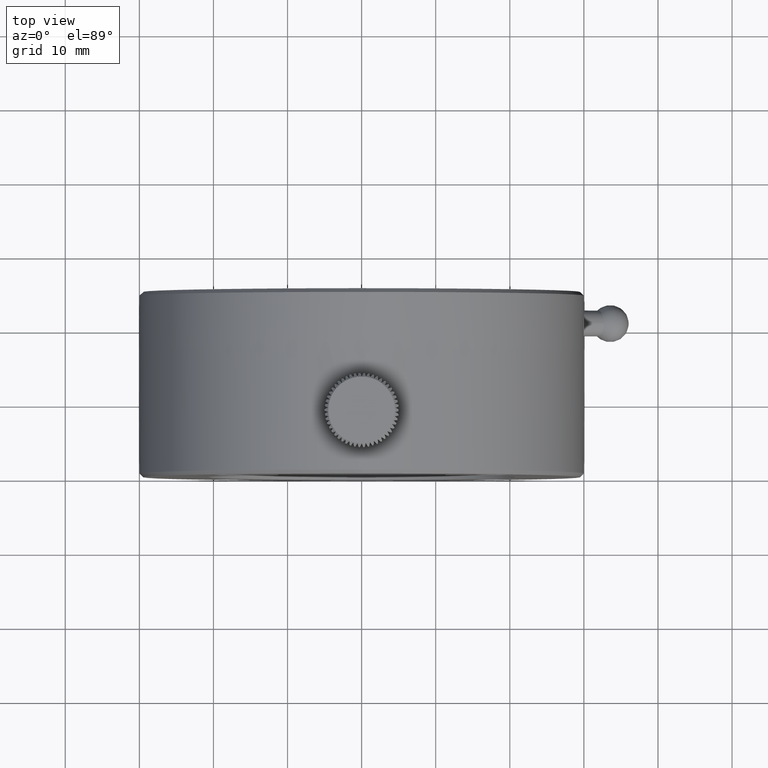
[diagram: clean part render]
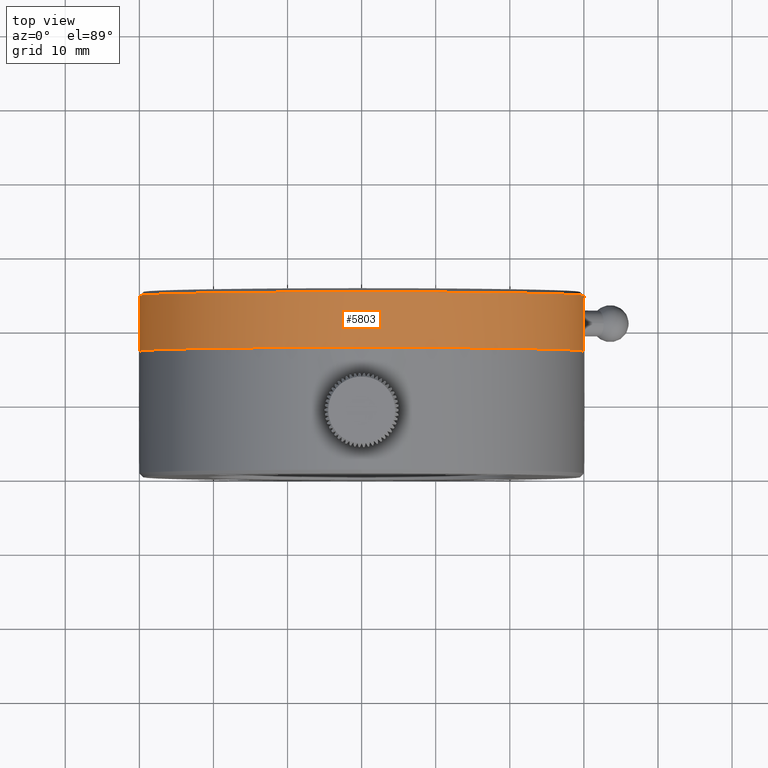
[diagram: same view with one face highlighted and labeled with its STEP entity id]
A machine part, top view. The second image highlights one B-rep face of the part: STEP entity #5803.
In plain terms, the highlighted cylindrical surface (bore or boss wall) has radius 30 mm, axis along (0, -1, 0).
Its self-contained STEP definition (entity closure, byte-faithful):
#49 = CARTESIAN_POINT ( 'NONE',  ( 27.68142442731680930, 21.32723536579543833, -11.56471716143525796 ) ) ;
#399 = EDGE_CURVE ( 'NONE', #4442, #4442, #5060, .T. ) ;
#623 = CARTESIAN_POINT ( 'NONE',  ( 26.63734876591264111, 21.16516572308115585, -13.80042212119369438 ) ) ;
#760 = CARTESIAN_POINT ( 'NONE',  ( 0.000000000000000000, 17.00000000000000000, 0.000000000000000000 ) ) ;
#774 = CARTESIAN_POINT ( 'NONE',  ( 26.70987944275684356, 21.63040557710719369, -13.65965931118524068 ) ) ;
#925 = VERTEX_POINT ( 'NONE', #1552 ) ;
#1015 = EDGE_LOOP ( 'NONE', ( #1775 ) ) ;
#1065 = ORIENTED_EDGE ( 'NONE', *, *, #399, .F. ) ;
#1344 = CARTESIAN_POINT ( 'NONE',  ( 27.69389442026435333, 20.83483435595317701, -11.53465265360213365 ) ) ;
#1357 = FACE_OUTER_BOUND ( 'NONE', #4241, .T. ) ;
#1378 = AXIS2_PLACEMENT_3D ( 'NONE', #2847, #6650, #7277 ) ;
#1395 = CARTESIAN_POINT ( 'NONE',  ( 27.44931779371646030, 19.90728621856177583, -12.10610849439462910 ) ) ;
#1445 = CARTESIAN_POINT ( 'NONE',  ( 26.85570001505799453, 20.00080466315160876, -13.37103894083736577 ) ) ;
#1491 = CARTESIAN_POINT ( 'NONE',  ( 27.69389442026434978, 21.16516564404682654, -11.53465265360213188 ) ) ;
#1552 = CARTESIAN_POINT ( 'NONE',  ( 0.000000000000000000, 17.00000000000000000, -30.00000000000000000 ) ) ;
#1775 = ORIENTED_EDGE ( 'NONE', *, *, #6146, .T. ) ;
#1824 = AXIS2_PLACEMENT_3D ( 'NONE', #3706, #7223, #6553 ) ;
#1880 = AXIS2_PLACEMENT_3D ( 'NONE', #760, #8060, #2766 ) ;
#2058 = CARTESIAN_POINT ( 'NONE',  ( 27.44948518352944689, 22.09232623478785129, -12.10571703049020620 ) ) ;
#2105 = CARTESIAN_POINT ( 'NONE',  ( 27.12069316179893974, 22.25011076576325664, -12.82554424066681520 ) ) ;
#2155 = CARTESIAN_POINT ( 'NONE',  ( 26.63734876591260203, 21.00000000000063594, -13.80042212119376366 ) ) ;
#2213 = CARTESIAN_POINT ( 'NONE',  ( 26.75171681991493955, 21.76794560982602533, -13.57789706570922306 ) ) ;
#2766 = DIRECTION ( 'NONE',  ( 0.000000000000000000, 0.000000000000000000, -1.000000000000000000 ) ) ;
#2775 = CARTESIAN_POINT ( 'NONE',  ( 27.05018420901201992, 22.21779081723431304, -12.97345152446759542 ) ) ;
#2834 = CARTESIAN_POINT ( 'NONE',  ( 27.32576376134784724, 19.78220921288773226, -12.38246926414523763 ) ) ;
#2847 = CARTESIAN_POINT ( 'NONE',  ( 0.000000000000000000, 24.50000000000000000, 0.000000000000000000 ) ) ;
#2881 = CARTESIAN_POINT ( 'NONE',  ( 27.68139871581099243, 20.67246482193225532, -11.56477917960581969 ) ) ;
#2969 = EDGE_LOOP ( 'NONE', ( #5251 ) ) ;
#3422 = VERTEX_POINT ( 'NONE', #8673 ) ;
#3606 = CARTESIAN_POINT ( 'NONE',  ( 26.75208405465637540, 20.23139648429414095, -13.57716113142863001 ) ) ;
#3648 = CARTESIAN_POINT ( 'NONE',  ( 27.59661686605143061, 21.76860394756834793, -11.76605469990645858 ) ) ;
#3706 = CARTESIAN_POINT ( 'NONE',  ( 0.000000000000000000, 5.000000000000009770, 0.000000000000000000 ) ) ;
#4241 = EDGE_LOOP ( 'NONE', ( #1065 ) ) ;
#4267 = CARTESIAN_POINT ( 'NONE',  ( 26.91789863587025167, 22.09271393086867974, -13.24574056926256560 ) ) ;
#4417 = CARTESIAN_POINT ( 'NONE',  ( 26.85662810958371693, 22.00110055191671776, -13.36918726488015530 ) ) ;
#4442 = VERTEX_POINT ( 'NONE', #6706 ) ;
#4955 = CARTESIAN_POINT ( 'NONE',  ( 27.63268580080644199, 20.36959497726122947, -11.68069466130576473 ) ) ;
#5041 = CARTESIAN_POINT ( 'NONE',  ( 26.65236385750483805, 20.67276540362959381, -13.77154465374024284 ) ) ;
#5060 = CIRCLE ( 'NONE', #1378, 30.00000000000000000 ) ;
#5093 = CARTESIAN_POINT ( 'NONE',  ( 26.63734876591255940, 20.83483427692011247, -13.80042212119383116 ) ) ;
#5109 = FACE_OUTER_BOUND ( 'NONE', #2969, .T. ) ;
#5148 = CARTESIAN_POINT ( 'NONE',  ( 26.65239503673935317, 21.32753592804000675, -13.77148471116477779 ) ) ;
#5251 = ORIENTED_EDGE ( 'NONE', *, *, #7740, .T. ) ;
#5720 = CARTESIAN_POINT ( 'NONE',  ( 27.59694484515138768, 20.23205483218132272, -11.76529968840710083 ) ) ;
#5725 = CIRCLE ( 'NONE', #1880, 30.00000000000000000 ) ;
#5785 = FACE_BOUND ( 'NONE', #1015, .T. ) ;
#5803 = ADVANCED_FACE ( 'NONE', ( #5109, #1357, #5785 ), #8036, .T. ) ;
#5818 = CARTESIAN_POINT ( 'NONE',  ( 27.11996507677523383, 19.75011134577054861, -12.82708372568305144 ) ) ;
#5869 = CARTESIAN_POINT ( 'NONE',  ( 26.70976878045558323, 20.37004075367307721, -13.65987529362516995 ) ) ;
#6146 = EDGE_CURVE ( 'NONE', #3422, #3422, #8416, .T. ) ;
#6437 = CARTESIAN_POINT ( 'NONE',  ( 27.25849370299465235, 22.24988865428257157, -12.53000812807204234 ) ) ;
#6553 = DIRECTION ( 'NONE',  ( 0.000000000000000000, 0.000000000000000000, -1.000000000000000000 ) ) ;
#6650 = DIRECTION ( 'NONE',  ( -0.000000000000000000, 1.000000000000000000, -0.000000000000000000 ) ) ;
#6706 = CARTESIAN_POINT ( 'NONE',  ( 0.000000000000000000, 24.50000000000000000, -30.00000000000000000 ) ) ;
#7162 = CARTESIAN_POINT ( 'NONE',  ( 27.50532117201403537, 21.99919556703051882, -11.97792189309905275 ) ) ;
#7208 = CARTESIAN_POINT ( 'NONE',  ( 26.63734876591260203, 21.00000000000063594, -13.80042212119376366 ) ) ;
#7223 = DIRECTION ( 'NONE',  ( 0.000000000000000000, -1.000000000000000000, 0.000000000000000000 ) ) ;
#7277 = DIRECTION ( 'NONE',  ( 0.000000000000000000, 0.000000000000000000, -1.000000000000000000 ) ) ;
#7352 = CARTESIAN_POINT ( 'NONE',  ( 27.50449952645612228, 19.99889967548070047, -11.97982250884938615 ) ) ;
#7740 = EDGE_CURVE ( 'NONE', #925, #925, #5725, .T. ) ;
#8036 = CYLINDRICAL_SURFACE ( 'NONE', #1824, 30.00000000000000000 ) ;
#8060 = DIRECTION ( 'NONE',  ( -0.000000000000000000, 1.000000000000000000, -0.000000000000000000 ) ) ;
#8067 = CARTESIAN_POINT ( 'NONE',  ( 26.91770610769934891, 19.90767391270343012, -13.24612092579537581 ) ) ;
#8416 = B_SPLINE_CURVE_WITH_KNOTS ( 'NONE', 3,
 ( #7208, #5093, #5041, #5869, #3606, #1445, #8067, #8798, #5818, #9479, #2834, #1395, #7352, #5720, #4955, #2881, #1344, #1491, #49, #8748, #3648, #7162, #2058, #8655, #6437, #2105, #2775, #4267, #4417, #2213, #774, #5148, #623, #2155 ),
 .UNSPECIFIED., .T., .F.,
 ( 4, 2, 2, 2, 2, 2, 2, 2, 2, 2, 2, 2, 2, 2, 2, 2, 4 ),
 ( 0.000000000000000000, 0.0004884601939756048070, 0.0009769203879512096140, 0.001465380581926814529, 0.001953840775902419228, 0.002442300969878023927, 0.002930761163853629059, 0.003419221357829233757, 0.003907681551804838456, 0.004396141745780443588, 0.004884601939756047853, 0.005373062133731652985, 0.005861522327707258118, 0.006349982521682862383, 0.006838442715658467515, 0.007326902909634071780, 0.007815363103609676912 ),
 .UNSPECIFIED. ) ;
#8655 = CARTESIAN_POINT ( 'NONE',  ( 27.32672435138452016, 22.21703445581582770, -12.38033755139783842 ) ) ;
#8673 = CARTESIAN_POINT ( 'NONE',  ( 26.63734876591260559, 21.00000000000063594, -13.80042212119376011 ) ) ;
#8748 = CARTESIAN_POINT ( 'NONE',  ( 27.63277986686348342, 21.62995978061635327, -11.68047165908599894 ) ) ;
#8798 = CARTESIAN_POINT ( 'NONE',  ( 27.04916854458164366, 19.78296557571580649, -12.97555789660250980 ) ) ;
#9479 = CARTESIAN_POINT ( 'NONE',  ( 27.25778245902794339, 19.74988923418363029, -12.53155529403668211 ) ) ;